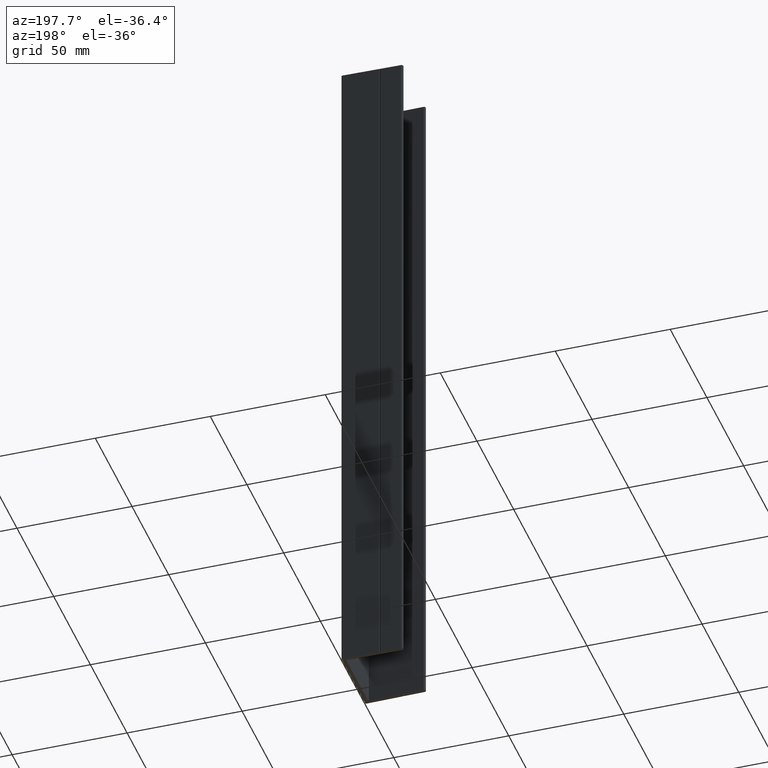
[diagram: clean part render]
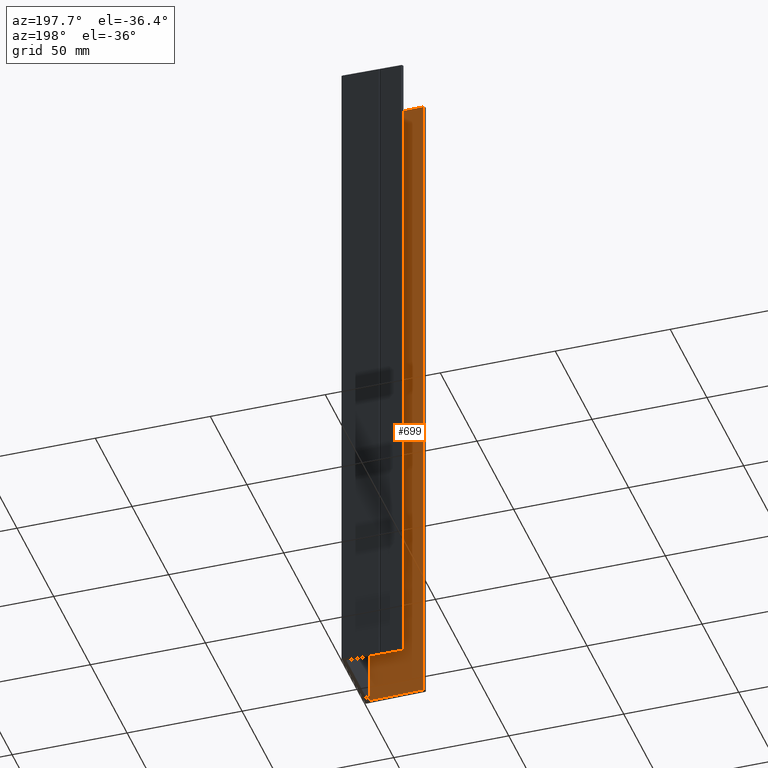
[diagram: same view with one face highlighted and labeled with its STEP entity id]
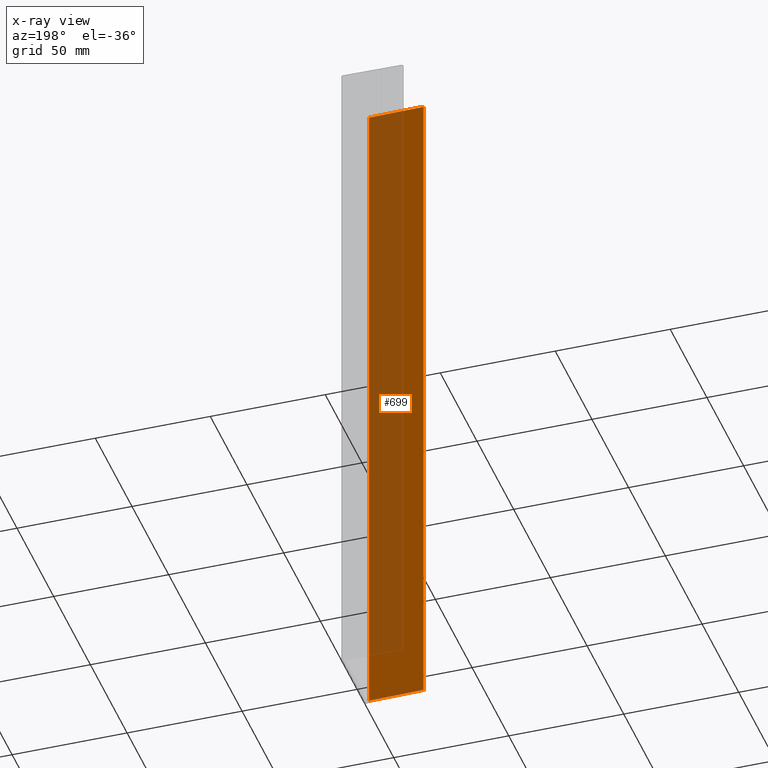
[diagram: x-ray of the same camera — body ghosted, the highlighted face saturated]
A machine part, auxiliary view. The second image highlights one B-rep face of the part: STEP entity #699.
The next image is the same camera in x-ray: the body ghosted, the highlighted face saturated — about 58% of this face is hidden behind the body in this view.
In plain terms, the highlighted planar face has unit normal (-0.016, -0.9999, 0).
Its self-contained STEP definition (entity closure, byte-faithful):
#20 = CARTESIAN_POINT ( 'NONE',  ( -0.5079989761965659800, -14.89187201638085500, 150.0000000000000000 ) ) ;
#22 = DIRECTION ( 'NONE',  ( -0.0000000000000000000, -0.0000000000000000000, -1.000000000000000000 ) ) ;
#56 = VECTOR ( 'NONE', #22, 1000.000000000000000 ) ;
#77 = LINE ( 'NONE', #577, #528 ) ;
#140 = EDGE_LOOP ( 'NONE', ( #363, #694, #399, #166 ) ) ;
#149 = FACE_OUTER_BOUND ( 'NONE', #140, .T. ) ;
#166 = ORIENTED_EDGE ( 'NONE', *, *, #900, .T. ) ;
#197 = CARTESIAN_POINT ( 'NONE',  ( -0.5079989761965659800, -14.89187201638085500, -150.0000000000000000 ) ) ;
#211 = PLANE ( 'NONE',  #685 ) ;
#220 = LINE ( 'NONE', #849, #56 ) ;
#239 = VERTEX_POINT ( 'NONE', #488 ) ;
#240 = LINE ( 'NONE', #271, #768 ) ;
#271 = CARTESIAN_POINT ( 'NONE',  ( -0.5079989761965659800, -14.89187201638085500, -150.0000000000000000 ) ) ;
#279 = CARTESIAN_POINT ( 'NONE',  ( -24.20010238034338800, -14.51279836191450600, 150.0000000000000000 ) ) ;
#363 = ORIENTED_EDGE ( 'NONE', *, *, #901, .T. ) ;
#377 = VECTOR ( 'NONE', #754, 1000.000000000000000 ) ;
#399 = ORIENTED_EDGE ( 'NONE', *, *, #903, .F. ) ;
#427 = VERTEX_POINT ( 'NONE', #279 ) ;
#453 = DIRECTION ( 'NONE',  ( -0.01599795239313215800, -0.9998720245707583000, 0.0000000000000000000 ) ) ;
#454 = CARTESIAN_POINT ( 'NONE',  ( -0.5079989761965659800, -14.89187201638085500, 150.0000000000000000 ) ) ;
#457 = DIRECTION ( 'NONE',  ( -0.9998720245707583000, 0.01599795239313215500, 0.0000000000000000000 ) ) ;
#488 = CARTESIAN_POINT ( 'NONE',  ( -24.20010238034338800, -14.51279836191450600, -150.0000000000000000 ) ) ;
#528 = VECTOR ( 'NONE', #457, 1000.000000000000100 ) ;
#549 = LINE ( 'NONE', #454, #377 ) ;
#577 = CARTESIAN_POINT ( 'NONE',  ( -0.5079989761965659800, -14.89187201638085500, 150.0000000000000000 ) ) ;
#641 = VERTEX_POINT ( 'NONE', #846 ) ;
#660 = DIRECTION ( 'NONE',  ( -0.9998720245707583000, 0.01599795239313215500, 0.0000000000000000000 ) ) ;
#685 = AXIS2_PLACEMENT_3D ( 'NONE', #20, #453, #751 ) ;
#694 = ORIENTED_EDGE ( 'NONE', *, *, #902, .F. ) ;
#699 = ADVANCED_FACE ( 'NONE', ( #149 ), #211, .F. ) ;
#751 = DIRECTION ( 'NONE',  ( 0.9998720245707583000, -0.01599795239313215800, 0.0000000000000000000 ) ) ;
#754 = DIRECTION ( 'NONE',  ( -0.0000000000000000000, -0.0000000000000000000, -1.000000000000000000 ) ) ;
#768 = VECTOR ( 'NONE', #660, 1000.000000000000100 ) ;
#846 = CARTESIAN_POINT ( 'NONE',  ( -0.5079989761965659800, -14.89187201638085500, 150.0000000000000000 ) ) ;
#849 = CARTESIAN_POINT ( 'NONE',  ( -24.20010238034338800, -14.51279836191450600, 150.0000000000000000 ) ) ;
#862 = VERTEX_POINT ( 'NONE', #197 ) ;
#900 = EDGE_CURVE ( 'NONE', #641, #862, #549, .T. ) ;
#901 = EDGE_CURVE ( 'NONE', #862, #239, #240, .T. ) ;
#902 = EDGE_CURVE ( 'NONE', #427, #239, #220, .T. ) ;
#903 = EDGE_CURVE ( 'NONE', #641, #427, #77, .T. ) ;